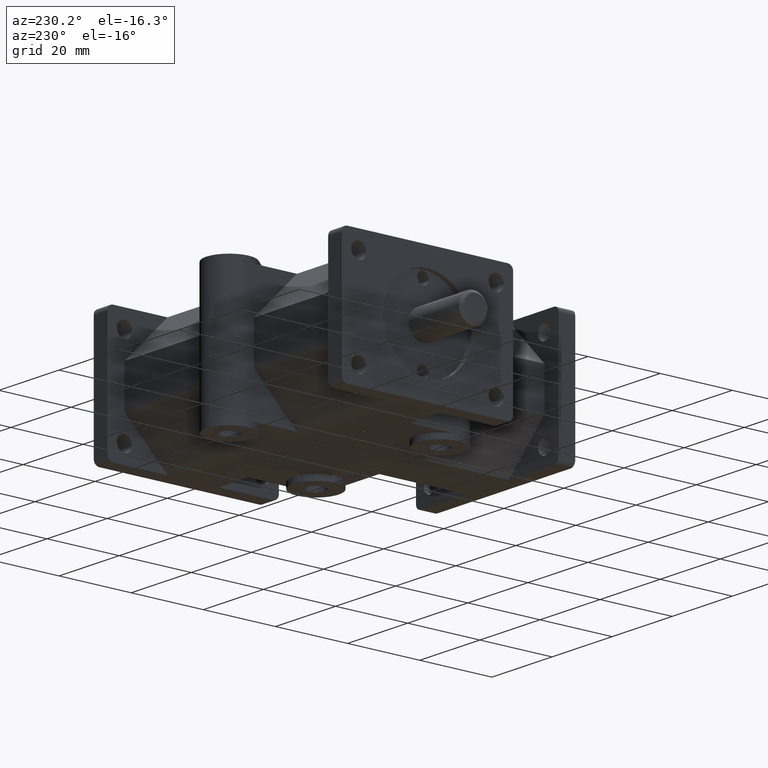
[diagram: clean part render]
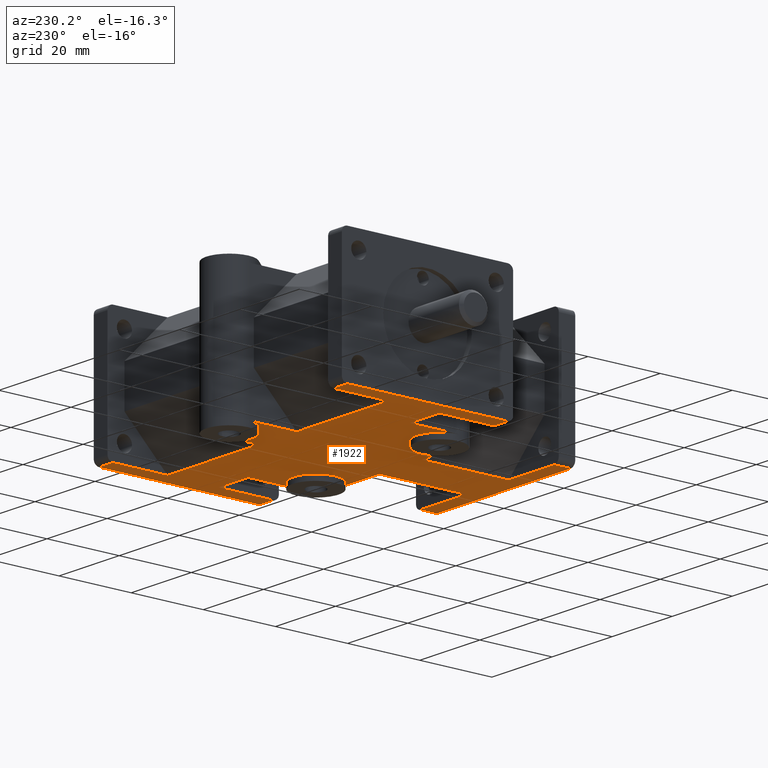
[diagram: same view with one face highlighted and labeled with its STEP entity id]
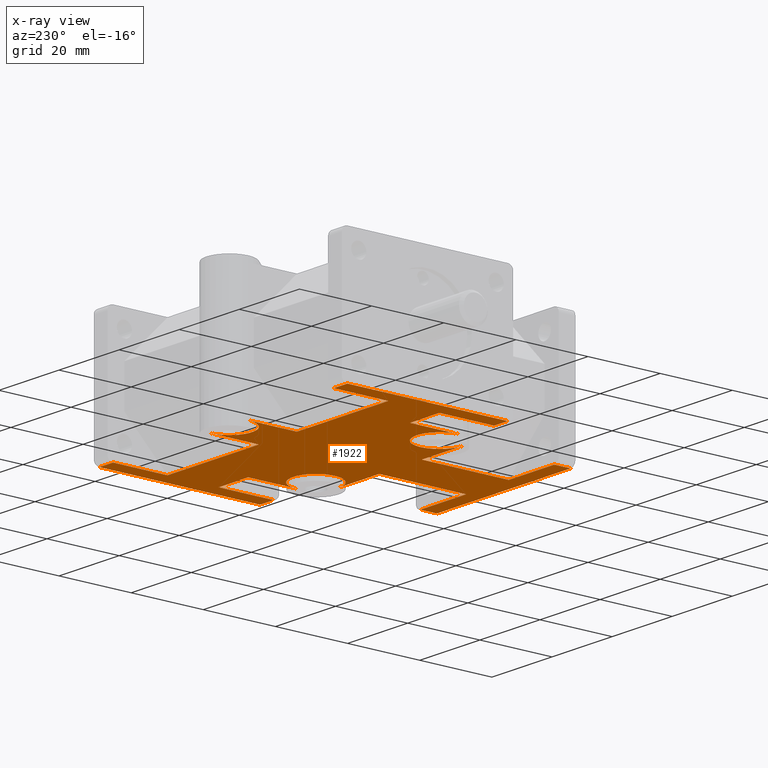
[diagram: x-ray of the same camera — body ghosted, the highlighted face saturated]
A machine part, auxiliary view. The second image highlights one B-rep face of the part: STEP entity #1922.
The next image is the same camera in x-ray: the body ghosted, the highlighted face saturated — about 0% of this face is hidden behind the body in this view.
In plain terms, the highlighted planar face has unit normal (0, 0, 1).
Its self-contained STEP definition (entity closure, byte-faithful):
#20=VECTOR('',#2324,1.);
#23=VECTOR('',#2335,1.);
#26=VECTOR('',#2348,1.);
#31=VECTOR('',#2367,1.);
#34=VECTOR('',#2380,1.);
#41=VECTOR('',#2407,1.);
#44=VECTOR('',#2419,1.);
#46=VECTOR('',#2426,1.);
#52=VECTOR('',#2437,1.);
#79=VECTOR('',#2478,1.);
#81=VECTOR('',#2481,1.);
#82=VECTOR('',#2482,1.);
#83=VECTOR('',#2483,1.);
#84=VECTOR('',#2486,1.);
#85=VECTOR('',#2487,1.);
#86=VECTOR('',#2488,1.);
#87=VECTOR('',#2489,1.);
#88=VECTOR('',#2490,1.);
#89=VECTOR('',#2491,1.);
#90=VECTOR('',#2494,1.);
#91=VECTOR('',#2495,1.);
#92=VECTOR('',#2496,1.);
#93=VECTOR('',#2497,1.);
#94=VECTOR('',#2498,1.);
#95=VECTOR('',#2501,1.);
#96=VECTOR('',#2502,1.);
#97=VECTOR('',#2503,1.);
#177=LINE('',#2839,#20);
#180=LINE('',#2852,#23);
#183=LINE('',#2866,#26);
#188=LINE('',#2888,#31);
#191=LINE('',#2902,#34);
#198=LINE('',#2933,#41);
#201=LINE('',#2945,#44);
#203=LINE('',#2952,#46);
#209=LINE('',#2967,#52);
#236=LINE('',#3028,#79);
#238=LINE('',#3031,#81);
#239=LINE('',#3033,#82);
#240=LINE('',#3035,#83);
#241=LINE('',#3039,#84);
#242=LINE('',#3041,#85);
#243=LINE('',#3042,#86);
#244=LINE('',#3043,#87);
#245=LINE('',#3045,#88);
#246=LINE('',#3047,#89);
#247=LINE('',#3051,#90);
#248=LINE('',#3053,#91);
#249=LINE('',#3054,#92);
#250=LINE('',#3055,#93);
#251=LINE('',#3057,#94);
#252=LINE('',#3061,#95);
#253=LINE('',#3063,#96);
#254=LINE('',#3065,#97);
#353=PLANE('',#2105);
#436=VERTEX_POINT('',#2838);
#437=VERTEX_POINT('',#2840);
#439=VERTEX_POINT('',#2846);
#442=VERTEX_POINT('',#2851);
#448=VERTEX_POINT('',#2865);
#449=VERTEX_POINT('',#2867);
#455=VERTEX_POINT('',#2882);
#458=VERTEX_POINT('',#2887);
#464=VERTEX_POINT('',#2901);
#465=VERTEX_POINT('',#2903);
#475=VERTEX_POINT('',#2927);
#478=VERTEX_POINT('',#2932);
#485=VERTEX_POINT('',#2953);
#491=VERTEX_POINT('',#2968);
#516=VERTEX_POINT('',#3027);
#517=VERTEX_POINT('',#3032);
#518=VERTEX_POINT('',#3034);
#519=VERTEX_POINT('',#3036);
#520=VERTEX_POINT('',#3038);
#521=VERTEX_POINT('',#3040);
#522=VERTEX_POINT('',#3044);
#523=VERTEX_POINT('',#3046);
#524=VERTEX_POINT('',#3048);
#525=VERTEX_POINT('',#3050);
#526=VERTEX_POINT('',#3052);
#527=VERTEX_POINT('',#3056);
#528=VERTEX_POINT('',#3058);
#529=VERTEX_POINT('',#3060);
#530=VERTEX_POINT('',#3062);
#531=VERTEX_POINT('',#3064);
#664=CIRCLE('',#2106,6.35);
#665=CIRCLE('',#2107,6.35);
#666=CIRCLE('',#2108,6.35);
#732=EDGE_CURVE('',#436,#437,#177,.T.);
#738=EDGE_CURVE('',#442,#439,#180,.T.);
#744=EDGE_CURVE('',#448,#449,#183,.T.);
#754=EDGE_CURVE('',#458,#455,#188,.T.);
#760=EDGE_CURVE('',#464,#465,#191,.T.);
#774=EDGE_CURVE('',#478,#475,#198,.T.);
#781=EDGE_CURVE('',#439,#436,#201,.T.);
#785=EDGE_CURVE('',#449,#485,#203,.T.);
#793=EDGE_CURVE('',#465,#491,#209,.T.);
#826=EDGE_CURVE('',#516,#478,#236,.T.);
#828=EDGE_CURVE('',#517,#442,#238,.T.);
#829=EDGE_CURVE('',#518,#517,#239,.T.);
#830=EDGE_CURVE('',#519,#518,#240,.T.);
#831=EDGE_CURVE('',#519,#520,#664,.T.);
#832=EDGE_CURVE('',#521,#520,#241,.T.);
#833=EDGE_CURVE('',#485,#521,#242,.T.);
#834=EDGE_CURVE('',#455,#448,#243,.T.);
#835=EDGE_CURVE('',#522,#458,#244,.T.);
#836=EDGE_CURVE('',#523,#522,#245,.T.);
#837=EDGE_CURVE('',#524,#523,#246,.T.);
#838=EDGE_CURVE('',#524,#525,#665,.T.);
#839=EDGE_CURVE('',#526,#525,#247,.T.);
#840=EDGE_CURVE('',#491,#526,#248,.T.);
#841=EDGE_CURVE('',#475,#464,#249,.T.);
#842=EDGE_CURVE('',#527,#516,#250,.T.);
#843=EDGE_CURVE('',#528,#527,#251,.T.);
#844=EDGE_CURVE('',#528,#529,#666,.T.);
#845=EDGE_CURVE('',#530,#529,#252,.T.);
#846=EDGE_CURVE('',#531,#530,#253,.T.);
#847=EDGE_CURVE('',#437,#531,#254,.T.);
#1133=ORIENTED_EDGE('',*,*,#732,.F.);
#1134=ORIENTED_EDGE('',*,*,#781,.F.);
#1135=ORIENTED_EDGE('',*,*,#738,.F.);
#1136=ORIENTED_EDGE('',*,*,#828,.F.);
#1137=ORIENTED_EDGE('',*,*,#829,.F.);
#1138=ORIENTED_EDGE('',*,*,#830,.F.);
#1139=ORIENTED_EDGE('',*,*,#831,.T.);
#1140=ORIENTED_EDGE('',*,*,#832,.F.);
#1141=ORIENTED_EDGE('',*,*,#833,.F.);
#1142=ORIENTED_EDGE('',*,*,#785,.F.);
#1143=ORIENTED_EDGE('',*,*,#744,.F.);
#1144=ORIENTED_EDGE('',*,*,#834,.F.);
#1145=ORIENTED_EDGE('',*,*,#754,.F.);
#1146=ORIENTED_EDGE('',*,*,#835,.F.);
#1147=ORIENTED_EDGE('',*,*,#836,.F.);
#1148=ORIENTED_EDGE('',*,*,#837,.F.);
#1149=ORIENTED_EDGE('',*,*,#838,.T.);
#1150=ORIENTED_EDGE('',*,*,#839,.F.);
#1151=ORIENTED_EDGE('',*,*,#840,.F.);
#1152=ORIENTED_EDGE('',*,*,#793,.F.);
#1153=ORIENTED_EDGE('',*,*,#760,.F.);
#1154=ORIENTED_EDGE('',*,*,#841,.F.);
#1155=ORIENTED_EDGE('',*,*,#774,.F.);
#1156=ORIENTED_EDGE('',*,*,#826,.F.);
#1157=ORIENTED_EDGE('',*,*,#842,.F.);
#1158=ORIENTED_EDGE('',*,*,#843,.F.);
#1159=ORIENTED_EDGE('',*,*,#844,.T.);
#1160=ORIENTED_EDGE('',*,*,#845,.F.);
#1161=ORIENTED_EDGE('',*,*,#846,.F.);
#1162=ORIENTED_EDGE('',*,*,#847,.F.);
#1559=EDGE_LOOP('',(#1133,#1134,#1135,#1136,#1137,#1138,#1139,#1140,#1141,
#1142,#1143,#1144,#1145,#1146,#1147,#1148,#1149,#1150,#1151,#1152,#1153,
#1154,#1155,#1156,#1157,#1158,#1159,#1160,#1161,#1162));
#1758=FACE_BOUND('',#1559,.T.);
#1922=ADVANCED_FACE('',(#1758),#353,.F.);
#2105=AXIS2_PLACEMENT_3D('',#3030,#2480,$);
#2106=AXIS2_PLACEMENT_3D('',#3037,#2484,#2485);
#2107=AXIS2_PLACEMENT_3D('',#3049,#2492,#2493);
#2108=AXIS2_PLACEMENT_3D('',#3059,#2499,#2500);
#2324=DIRECTION('',(0.,1.,0.));
#2335=DIRECTION('',(0.,-1.,0.));
#2348=DIRECTION('',(1.,0.,0.));
#2367=DIRECTION('',(-1.,0.,0.));
#2380=DIRECTION('',(-1.,0.,0.));
#2407=DIRECTION('',(1.,0.,0.));
#2419=DIRECTION('',(1.,0.,0.));
#2426=DIRECTION('',(0.,1.,0.));
#2437=DIRECTION('',(0.,-1.,0.));
#2478=DIRECTION('',(0.,-1.,0.));
#2480=DIRECTION('',(0.,0.,1.));
#2481=DIRECTION('',(-1.,0.,0.));
#2482=DIRECTION('',(0.,-1.,0.));
#2483=DIRECTION('',(1.,0.,0.));
#2484=DIRECTION('',(0.,0.,1.));
#2485=DIRECTION('',(6.35,0.,0.));
#2486=DIRECTION('',(0.,-1.,0.));
#2487=DIRECTION('',(1.,0.,0.));
#2488=DIRECTION('',(0.,-1.,0.));
#2489=DIRECTION('',(0.,1.,0.));
#2490=DIRECTION('',(-1.,0.,0.));
#2491=DIRECTION('',(0.,-1.,0.));
#2492=DIRECTION('',(0.,0.,1.));
#2493=DIRECTION('',(6.35,0.,0.));
#2494=DIRECTION('',(0.,1.,0.));
#2495=DIRECTION('',(-1.,0.,0.));
#2496=DIRECTION('',(0.,1.,0.));
#2497=DIRECTION('',(1.,0.,0.));
#2498=DIRECTION('',(0.,1.,0.));
#2499=DIRECTION('',(0.,0.,1.));
#2500=DIRECTION('',(6.35,0.,0.));
#2501=DIRECTION('',(1.,0.,0.));
#2502=DIRECTION('',(0.,1.,0.));
#2503=DIRECTION('',(-1.,0.,0.));
#2838=CARTESIAN_POINT('',(22.225,0.,-17.526));
#2839=CARTESIAN_POINT('',(22.225,23.6376233160517,-17.526));
#2840=CARTESIAN_POINT('',(22.225,4.572,-17.526));
#2846=CARTESIAN_POINT('',(-22.225,0.,-17.526));
#2851=CARTESIAN_POINT('',(-22.225,4.572,-17.526));
#2852=CARTESIAN_POINT('',(-22.225,21.3516233160517,-17.526));
#2865=CARTESIAN_POINT('',(-41.275,33.3375,-17.526));
#2866=CARTESIAN_POINT('',(-18.3515,33.3375,-17.526));
#2867=CARTESIAN_POINT('',(-36.703,33.3375,-17.526));
#2882=CARTESIAN_POINT('',(-41.275,77.7875,-17.526));
#2887=CARTESIAN_POINT('',(-36.703,77.7875,-17.526));
#2888=CARTESIAN_POINT('',(-20.6375,77.7875,-17.526));
#2901=CARTESIAN_POINT('',(41.275,77.7875,-17.526));
#2902=CARTESIAN_POINT('',(18.3515,77.7875,-17.526));
#2903=CARTESIAN_POINT('',(36.703,77.7875,-17.526));
#2927=CARTESIAN_POINT('',(41.275,33.3375,-17.526));
#2932=CARTESIAN_POINT('',(36.703,33.3375,-17.526));
#2933=CARTESIAN_POINT('',(20.6375,33.3375,-17.526));
#2945=CARTESIAN_POINT('',(23.749,0.,-17.526));
#2952=CARTESIAN_POINT('',(-36.703,39.7031233160517,-17.526));
#2953=CARTESIAN_POINT('',(-36.703,48.4505,-17.526));
#2967=CARTESIAN_POINT('',(36.703,58.7531233160517,-17.526));
#2968=CARTESIAN_POINT('',(36.703,62.6745,-17.526));
#3027=CARTESIAN_POINT('',(36.703,48.4505,-17.526));
#3028=CARTESIAN_POINT('',(36.703,31.8135,-17.526));
#3030=CARTESIAN_POINT('',(-3.41480316246034E-016,42.7032466321034,-17.526));
#3031=CARTESIAN_POINT('',(-19.05,4.572,-17.526));
#3032=CARTESIAN_POINT('',(-7.112,4.572,-17.526));
#3033=CARTESIAN_POINT('',(-7.112,23.6376233160517,-17.526));
#3034=CARTESIAN_POINT('',(-7.112,28.6385,-17.526));
#3035=CARTESIAN_POINT('',(-9.525,28.6385,-17.526));
#3036=CARTESIAN_POINT('',(-20.574,28.6385,-17.526));
#3037=CARTESIAN_POINT('',(-20.574,34.9885,-17.526));
#3038=CARTESIAN_POINT('',(-26.924,34.9885,-17.526));
#3039=CARTESIAN_POINT('',(-26.924,34.9885,-17.526));
#3040=CARTESIAN_POINT('',(-26.924,48.4505,-17.526));
#3041=CARTESIAN_POINT('',(-13.462,48.4505,-17.526));
#3042=CARTESIAN_POINT('',(-41.275,31.8135,-17.526));
#3043=CARTESIAN_POINT('',(-36.703,74.6125,-17.526));
#3044=CARTESIAN_POINT('',(-36.703,62.6745,-17.526));
#3045=CARTESIAN_POINT('',(-18.3515,62.6745,-17.526));
#3046=CARTESIAN_POINT('',(-6.35,62.6745,-17.526));
#3047=CARTESIAN_POINT('',(-6.35,58.7531233160517,-17.526));
#3048=CARTESIAN_POINT('',(-6.35,76.1365,-17.526));
#3049=CARTESIAN_POINT('',(0.,76.1365,-17.526));
#3050=CARTESIAN_POINT('',(6.35,76.1365,-17.526));
#3051=CARTESIAN_POINT('',(6.35,74.6125,-17.526));
#3052=CARTESIAN_POINT('',(6.35,62.6745,-17.526));
#3053=CARTESIAN_POINT('',(3.175,62.6745,-17.526));
#3054=CARTESIAN_POINT('',(41.275,31.8135,-17.526));
#3055=CARTESIAN_POINT('',(18.3515,48.4505,-17.526));
#3056=CARTESIAN_POINT('',(26.924,48.4505,-17.526));
#3057=CARTESIAN_POINT('',(26.924,39.7031233160517,-17.526));
#3058=CARTESIAN_POINT('',(26.924,34.9885,-17.526));
#3059=CARTESIAN_POINT('',(20.574,34.9885,-17.526));
#3060=CARTESIAN_POINT('',(20.574,28.6385,-17.526));
#3061=CARTESIAN_POINT('',(20.574,28.6385,-17.526));
#3062=CARTESIAN_POINT('',(7.112,28.6385,-17.526));
#3063=CARTESIAN_POINT('',(7.112,35.5756233160517,-17.526));
#3064=CARTESIAN_POINT('',(7.112,4.572,-17.526));
#3065=CARTESIAN_POINT('',(9.525,4.572,-17.526));